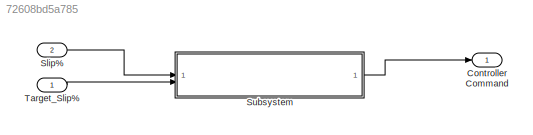
MODEL slx_72608bd5a785
KIND model
CONFIG AbsTol = auto
CONFIG EnableMultiTasking = off
CONFIG FixedStep = 0.005
CONFIG MaxStep = auto
CONFIG MinStep = auto
CONFIG RelTol = 1e-3
CONFIG SampleTimeConstraint = Unconstrained
CONFIG SolverName = FixedStepDiscrete
CONFIG StartTime = 0.0
CONFIG StopTime = 10.0
BLOCK [Outport] Controller Command
BLOCK [Inport] Slip%
  Port = 2
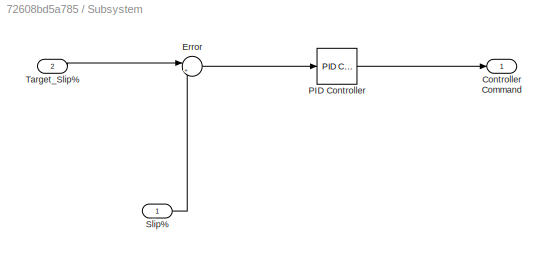
BLOCK [SubSystem] Subsystem
BLOCK [Outport] Subsystem/Controller Command
BLOCK [Sum] Subsystem/Error
  Inputs = |+-
  NameLocation = top
BLOCK [Reference] Subsystem/PID Controller  REF=slpidlib/PID Controller
  LibrarySourceBlock = simulink/Continuous/PID Controller
  SourceBlock = slpidlib/PID Controller
  SourceType = PID 1dof
BLOCK [Inport] Subsystem/Slip%
BLOCK [Inport] Subsystem/Target_Slip%
  Port = 2
BLOCK [Inport] Target_Slip%
LINE Slip%:1 -> Subsystem:1
LINE Subsystem/Error:1 -> Subsystem/PID Controller:1
LINE Subsystem/PID Controller:1 -> Subsystem/Controller Command:1
LINE Subsystem/Slip%:1 -> Subsystem/Error:2
LINE Subsystem/Target_Slip%:1 -> Subsystem/Error:1
LINE Subsystem:1 -> Controller Command:1
LINE Target_Slip%:1 -> Subsystem:2
